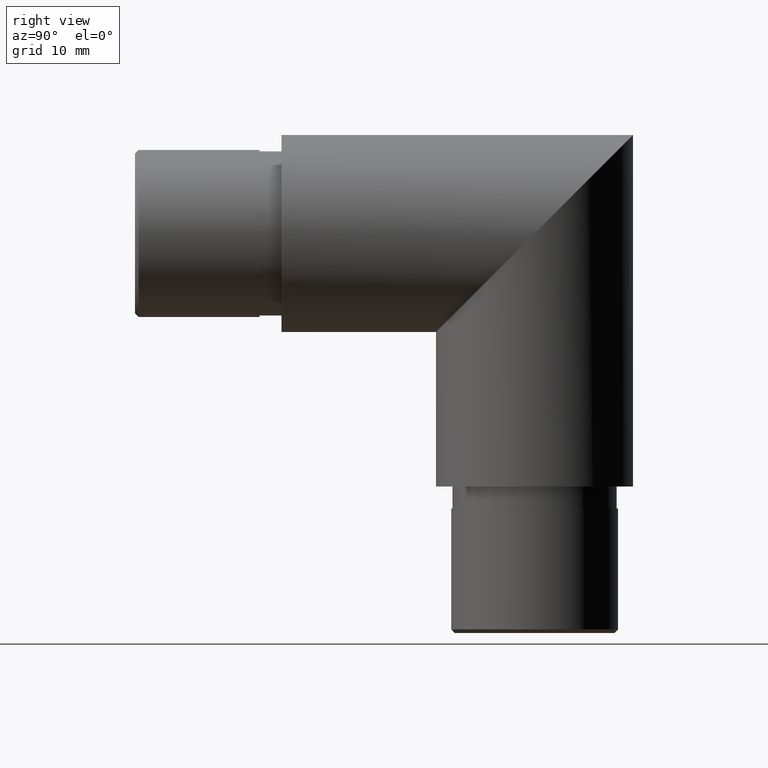
[diagram: clean part render]
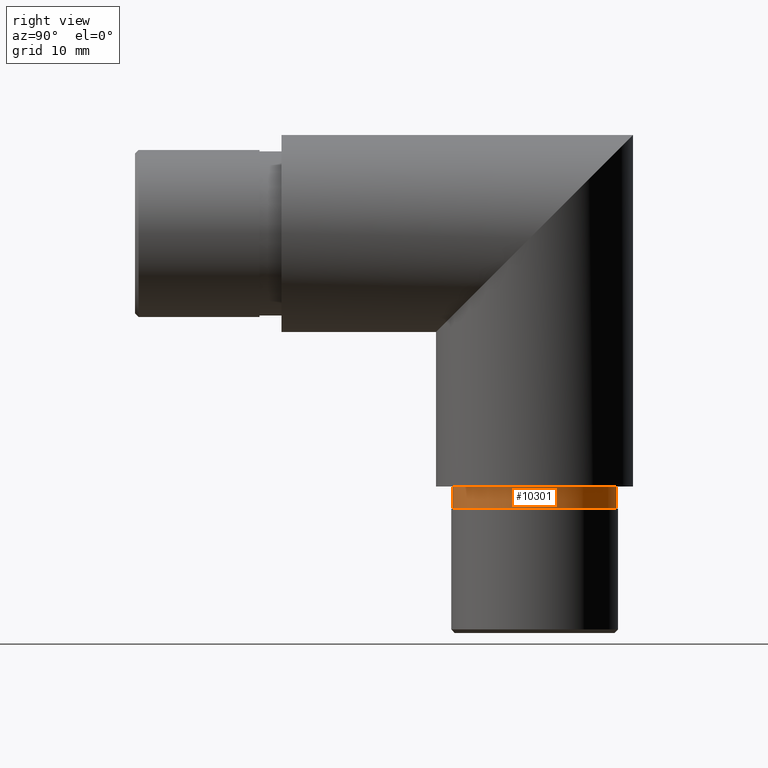
[diagram: same view with one face highlighted and labeled with its STEP entity id]
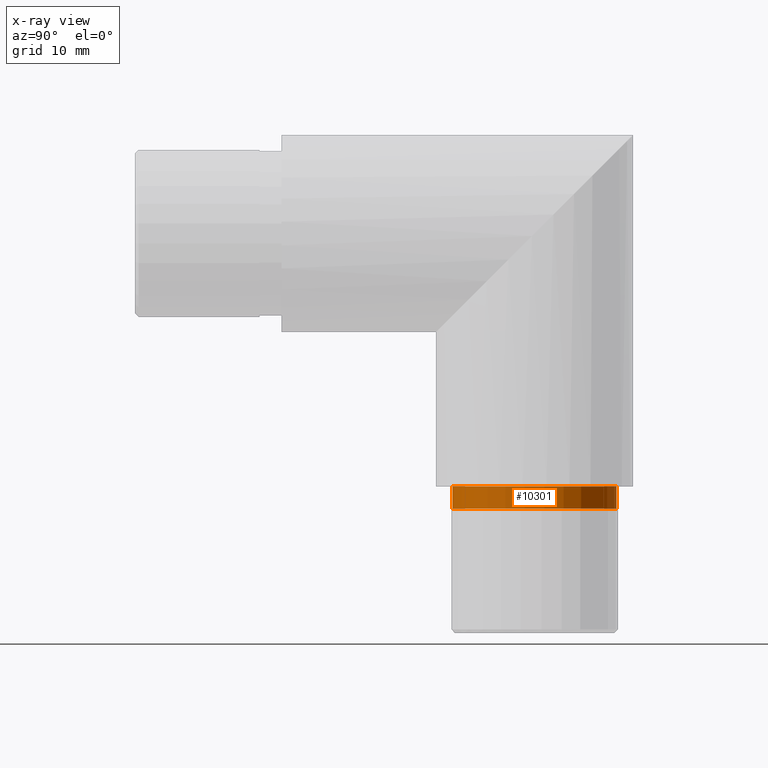
[diagram: x-ray of the same camera — body ghosted, the highlighted face saturated]
A machine part, right view. The second image highlights one B-rep face of the part: STEP entity #10301.
The next image is the same camera in x-ray: the body ghosted, the highlighted face saturated — about 0% of this face is hidden behind the body in this view.
In plain terms, the highlighted cylindrical surface (bore or boss wall) has radius 11.2 mm, axis along (-0, 0, 1).
Its self-contained STEP definition (entity closure, byte-faithful):
#258 = FACE_OUTER_BOUND ( 'NONE', #5780, .T. ) ;
#1122 = ORIENTED_EDGE ( 'NONE', *, *, #4489, .F. ) ;
#1265 = CARTESIAN_POINT ( 'NONE',  ( 0.0000000000000000000, 45.74999999999987900, -34.55000000000003300 ) ) ;
#1638 = CARTESIAN_POINT ( 'NONE',  ( 0.0000000000000000000, 34.54999999999987600, -34.54999999999999000 ) ) ;
#1757 = DIRECTION ( 'NONE',  ( -0.0000000000000000000, 3.441691376337984500E-015, 1.000000000000000000 ) ) ;
#1842 = CIRCLE ( 'NONE', #5106, 11.20000000000000100 ) ;
#1964 = CIRCLE ( 'NONE', #6258, 11.20000000000000100 ) ;
#4489 = EDGE_CURVE ( 'NONE', #5141, #5141, #1964, .T. ) ;
#4675 = CARTESIAN_POINT ( 'NONE',  ( 0.0000000000000000000, 45.74999999999987200, -37.55000000000003300 ) ) ;
#4748 = DIRECTION ( 'NONE',  ( 0.0000000000000000000, -3.441691376337984500E-015, -1.000000000000000000 ) ) ;
#5066 = DIRECTION ( 'NONE',  ( 0.0000000000000000000, -1.000000000000000000, 3.717264591378872000E-015 ) ) ;
#5106 = AXIS2_PLACEMENT_3D ( 'NONE', #1638, #5831, #5145 ) ;
#5141 = VERTEX_POINT ( 'NONE', #4675 ) ;
#5145 = DIRECTION ( 'NONE',  ( 0.0000000000000000000, 1.000000000000000000, -3.717264591378872000E-015 ) ) ;
#5580 = DIRECTION ( 'NONE',  ( 0.0000000000000000000, 1.000000000000000000, -3.717264591378872000E-015 ) ) ;
#5780 = EDGE_LOOP ( 'NONE', ( #6977 ) ) ;
#5831 = DIRECTION ( 'NONE',  ( 0.0000000000000000000, -3.441691376337984500E-015, -1.000000000000000000 ) ) ;
#6214 = AXIS2_PLACEMENT_3D ( 'NONE', #9358, #1757, #5066 ) ;
#6258 = AXIS2_PLACEMENT_3D ( 'NONE', #7213, #4748, #5580 ) ;
#6678 = FACE_OUTER_BOUND ( 'NONE', #7403, .T. ) ;
#6977 = ORIENTED_EDGE ( 'NONE', *, *, #10338, .T. ) ;
#7213 = CARTESIAN_POINT ( 'NONE',  ( 0.0000000000000000000, 34.54999999999986900, -37.54999999999999000 ) ) ;
#7403 = EDGE_LOOP ( 'NONE', ( #1122 ) ) ;
#7993 = CYLINDRICAL_SURFACE ( 'NONE', #6214, 11.20000000000000100 ) ;
#8254 = VERTEX_POINT ( 'NONE', #1265 ) ;
#9358 = CARTESIAN_POINT ( 'NONE',  ( 0.0000000000000000000, 34.54999999999986900, -37.54999999999999000 ) ) ;
#10301 = ADVANCED_FACE ( 'NONE', ( #6678, #258 ), #7993, .T. ) ;
#10338 = EDGE_CURVE ( 'NONE', #8254, #8254, #1842, .T. ) ;